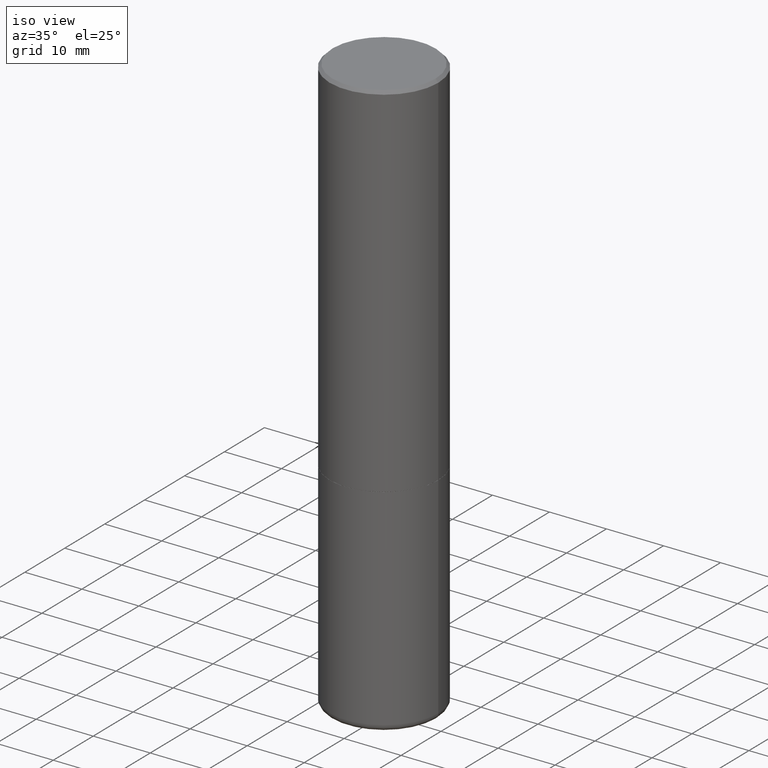
[diagram: clean part render]
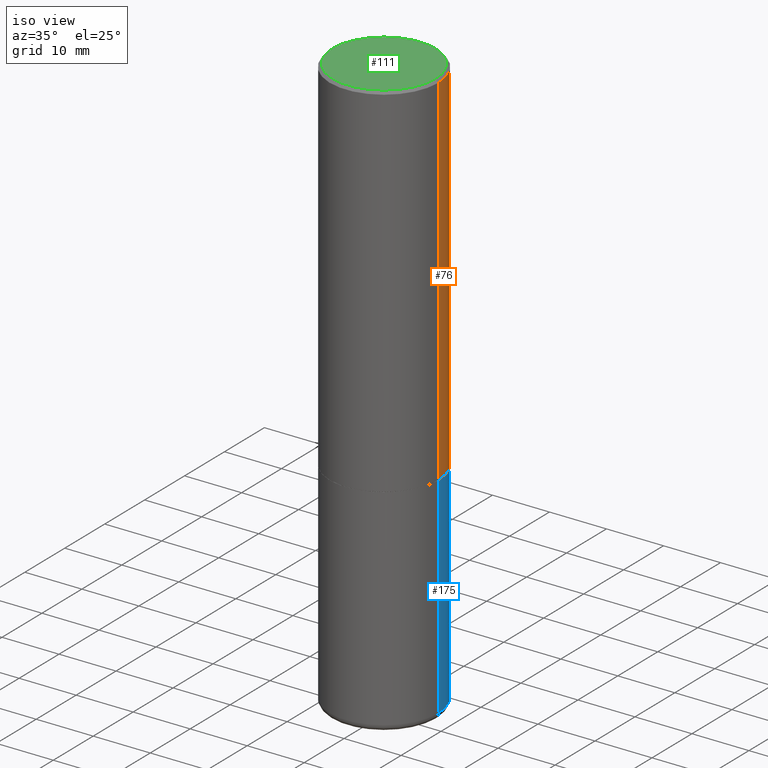
[diagram: same view with three faces highlighted in distinct colors, each labeled with its STEP entity id]
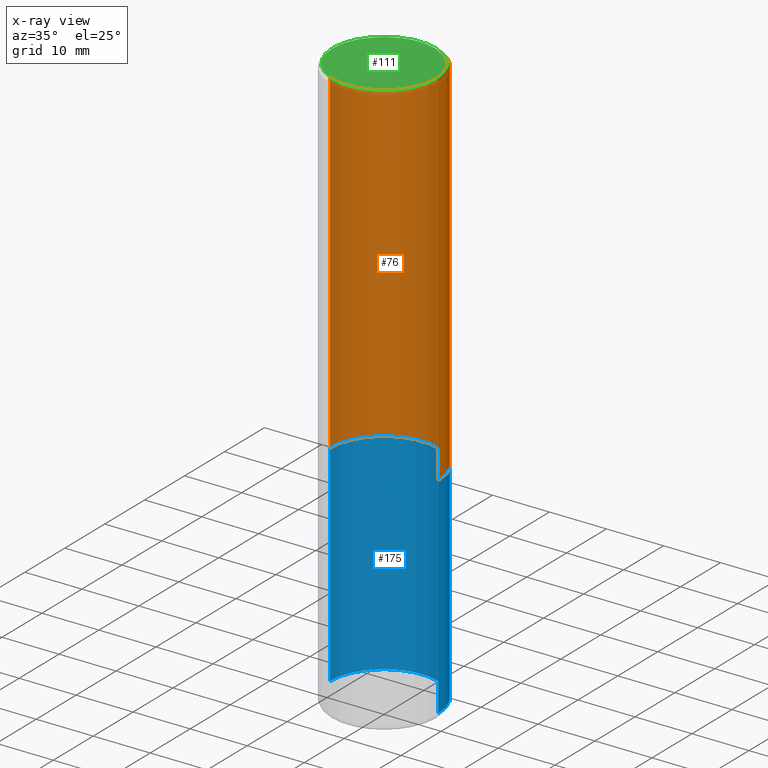
[diagram: x-ray of the same camera — body ghosted, the three highlighted faces saturated]
A machine part, iso view with three faces highlighted in distinct colors.
The next image is the same camera in x-ray (body ghosted, the three faces saturated) — at least one of them is partly hidden behind the body in this view.
Their STEP definitions:

[orange] entity #76 — the highlighted cylindrical surface (partial cylindrical patch) has radius 9.525 mm, axis along (-0, 0, 1).
#16 = VERTEX_POINT ( 'NONE', #174 ) ;
#54 = VECTOR ( 'NONE', #390, 39.37007874015748143 ) ;
#67 = ORIENTED_EDGE ( 'NONE', *, *, #342, .F. ) ;
#69 = CYLINDRICAL_SURFACE ( 'NONE', #152, 0.3749999999999998335 ) ;
#73 = DIRECTION ( 'NONE',  ( -2.445468806185136597E-29, 3.491481338843145583E-15, 1.000000000000000000 ) ) ;
#76 = ADVANCED_FACE ( 'NONE', ( #368 ), #69, .T. ) ;
#97 = AXIS2_PLACEMENT_3D ( 'NONE', #371, #73, #205 ) ;
#113 = CARTESIAN_POINT ( 'NONE',  ( -0.3749999999999999445, -1.732985487172565737E-15, -2.499000000000000998 ) ) ;
#128 = CIRCLE ( 'NONE', #97, 0.3750000000000000555 ) ;
#142 = EDGE_CURVE ( 'NONE', #288, #199, #151, .T. ) ;
#144 = DIRECTION ( 'NONE',  ( -2.445468806185136597E-29, 3.491481338843145583E-15, 1.000000000000000000 ) ) ;
#151 = LINE ( 'NONE', #253, #54 ) ;
#152 = AXIS2_PLACEMENT_3D ( 'NONE', #334, #144, #215 ) ;
#155 = LINE ( 'NONE', #353, #286 ) ;
#166 = EDGE_LOOP ( 'NONE', ( #400, #425, #386, #67 ) ) ;
#171 = DIRECTION ( 'NONE',  ( 1.000000000000000000, -6.982962677686266711E-15, 0.000000000000000000 ) ) ;
#174 = CARTESIAN_POINT ( 'NONE',  ( 0.3749999999999996669, -2.642516375941185268E-15, -0.02000000000000001776 ) ) ;
#188 = DIRECTION ( 'NONE',  ( -2.445468806185136877E-29, 3.491481338843145188E-15, 1.000000000000000000 ) ) ;
#199 = VERTEX_POINT ( 'NONE', #282 ) ;
#205 = DIRECTION ( 'NONE',  ( 1.000000000000000000, -6.982962677686264344E-15, 0.000000000000000000 ) ) ;
#215 = DIRECTION ( 'NONE',  ( 1.000000000000000000, -6.982962677686265922E-15, 4.876176775795935793E-29 ) ) ;
#248 = CARTESIAN_POINT ( 'NONE',  ( 0.3750000000000000555, -1.134382286990137353E-14, -2.499000000000000998 ) ) ;
#251 = EDGE_CURVE ( 'NONE', #357, #288, #128, .T. ) ;
#253 = CARTESIAN_POINT ( 'NONE',  ( -0.3749999999999998335, 2.664535259100374514E-15, -1.844600658845588757E-29 ) ) ;
#282 = CARTESIAN_POINT ( 'NONE',  ( -0.3749999999999996669, 2.548781377355484746E-15, -0.02000000000000001776 ) ) ;
#286 = VECTOR ( 'NONE', #188, 39.37007874015748143 ) ;
#288 = VERTEX_POINT ( 'NONE', #113 ) ;
#334 = CARTESIAN_POINT ( 'NONE',  ( 0.000000000000000000, 0.000000000000000000, 0.000000000000000000 ) ) ;
#338 = DIRECTION ( 'NONE',  ( -2.445468806185136597E-29, 3.491481338843145583E-15, 1.000000000000000000 ) ) ;
#342 = EDGE_CURVE ( 'NONE', #357, #16, #155, .T. ) ;
#352 = CARTESIAN_POINT ( 'NONE',  ( 4.890937612370276662E-31, -6.982962677686296539E-17, -0.02000000000000001776 ) ) ;
#353 = CARTESIAN_POINT ( 'NONE',  ( 0.3749999999999998335, -2.618611004132348439E-15, 1.828566290923475082E-29 ) ) ;
#357 = VERTEX_POINT ( 'NONE', #248 ) ;
#368 = FACE_OUTER_BOUND ( 'NONE', #166, .T. ) ;
#371 = CARTESIAN_POINT ( 'NONE',  ( 6.111226546656659252E-29, -8.725211865769023513E-15, -2.499000000000000998 ) ) ;
#386 = ORIENTED_EDGE ( 'NONE', *, *, #391, .F. ) ;
#390 = DIRECTION ( 'NONE',  ( -2.445468806185136877E-29, 3.491481338843145188E-15, 1.000000000000000000 ) ) ;
#391 = EDGE_CURVE ( 'NONE', #16, #199, #417, .T. ) ;
#395 = AXIS2_PLACEMENT_3D ( 'NONE', #352, #338, #171 ) ;
#400 = ORIENTED_EDGE ( 'NONE', *, *, #251, .T. ) ;
#417 = CIRCLE ( 'NONE', #395, 0.3749999999999996669 ) ;
#425 = ORIENTED_EDGE ( 'NONE', *, *, #142, .T. ) ;

[blue] entity #175 — the highlighted cylindrical surface (partial cylindrical patch) has radius 9.525 mm, axis along (-0, 0, 1).
#11 = CARTESIAN_POINT ( 'NONE',  ( -0.3749999999999997780, -8.604328423477052173E-15, -3.955061670936044216 ) ) ;
#13 = CARTESIAN_POINT ( 'NONE',  ( -0.3750000000000000555, -8.604328423477050596E-15, -2.500000000000000000 ) ) ;
#19 = VERTEX_POINT ( 'NONE', #101 ) ;
#20 = EDGE_CURVE ( 'NONE', #19, #339, #170, .T. ) ;
#41 = CIRCLE ( 'NONE', #252, 0.3750000000000000555 ) ;
#49 = AXIS2_PLACEMENT_3D ( 'NONE', #423, #126, #354 ) ;
#57 = ORIENTED_EDGE ( 'NONE', *, *, #228, .F. ) ;
#61 = FACE_OUTER_BOUND ( 'NONE', #363, .T. ) ;
#65 = CARTESIAN_POINT ( 'NONE',  ( 9.671979942812559398E-29, -1.380902401804698764E-14, -3.955061670936044216 ) ) ;
#70 = VECTOR ( 'NONE', #306, 39.37007874015748143 ) ;
#101 = CARTESIAN_POINT ( 'NONE',  ( 0.3749999999999997780, -1.642763502217933766E-14, -3.955061670936044216 ) ) ;
#103 = VERTEX_POINT ( 'NONE', #11 ) ;
#106 = CARTESIAN_POINT ( 'NONE',  ( 6.113672015462842613E-29, -8.728703347107864943E-15, -2.500000000000000000 ) ) ;
#126 = DIRECTION ( 'NONE',  ( -2.445468806185136597E-29, 3.491481338843145583E-15, 1.000000000000000000 ) ) ;
#143 = DIRECTION ( 'NONE',  ( 1.000000000000000000, -6.982962677686264344E-15, 0.000000000000000000 ) ) ;
#170 = LINE ( 'NONE', #231, #70 ) ;
#175 = ADVANCED_FACE ( 'NONE', ( #61 ), #287, .T. ) ;
#190 = ORIENTED_EDGE ( 'NONE', *, *, #421, .T. ) ;
#216 = AXIS2_PLACEMENT_3D ( 'NONE', #65, #435, #333 ) ;
#220 = ORIENTED_EDGE ( 'NONE', *, *, #320, .T. ) ;
#225 = DIRECTION ( 'NONE',  ( -2.445468806185136877E-29, 3.491481338843145188E-15, 1.000000000000000000 ) ) ;
#228 = EDGE_CURVE ( 'NONE', #339, #366, #41, .T. ) ;
#231 = CARTESIAN_POINT ( 'NONE',  ( 0.3749999999999998890, -2.618611004132349228E-15, 1.828566290923475362E-29 ) ) ;
#252 = AXIS2_PLACEMENT_3D ( 'NONE', #106, #377, #143 ) ;
#287 = CYLINDRICAL_SURFACE ( 'NONE', #49, 0.3749999999999998890 ) ;
#295 = ORIENTED_EDGE ( 'NONE', *, *, #20, .F. ) ;
#300 = CARTESIAN_POINT ( 'NONE',  ( 0.3750000000000000555, -1.134731435124021338E-14, -2.500000000000000000 ) ) ;
#302 = CARTESIAN_POINT ( 'NONE',  ( -0.3749999999999998890, 2.664535259100374908E-15, -1.844600658845589038E-29 ) ) ;
#306 = DIRECTION ( 'NONE',  ( -2.445468806185136877E-29, 3.491481338843145188E-15, 1.000000000000000000 ) ) ;
#320 = EDGE_CURVE ( 'NONE', #19, #103, #321, .T. ) ;
#321 = CIRCLE ( 'NONE', #216, 0.3749999999999997780 ) ;
#333 = DIRECTION ( 'NONE',  ( 1.000000000000000000, -6.982962677686266711E-15, 0.000000000000000000 ) ) ;
#339 = VERTEX_POINT ( 'NONE', #300 ) ;
#354 = DIRECTION ( 'NONE',  ( 1.000000000000000000, -6.982962677686266711E-15, 4.876176775795935793E-29 ) ) ;
#363 = EDGE_LOOP ( 'NONE', ( #220, #190, #57, #295 ) ) ;
#366 = VERTEX_POINT ( 'NONE', #13 ) ;
#372 = LINE ( 'NONE', #302, #419 ) ;
#377 = DIRECTION ( 'NONE',  ( -2.445468806185136597E-29, 3.491481338843145583E-15, 1.000000000000000000 ) ) ;
#419 = VECTOR ( 'NONE', #225, 39.37007874015748143 ) ;
#421 = EDGE_CURVE ( 'NONE', #103, #366, #372, .T. ) ;
#423 = CARTESIAN_POINT ( 'NONE',  ( 0.000000000000000000, 0.000000000000000000, 0.000000000000000000 ) ) ;
#435 = DIRECTION ( 'NONE',  ( -2.445468806185136597E-29, 3.491481338843145583E-15, 1.000000000000000000 ) ) ;

[green] entity #111 — the highlighted planar face has unit normal (0, -0, -1).
#7 = AXIS2_PLACEMENT_3D ( 'NONE', #313, #85, #163 ) ;
#53 = CARTESIAN_POINT ( 'NONE',  ( -0.3549999999999997047, 2.513866563967053491E-15, 4.268512490082953109E-18 ) ) ;
#59 = AXIS2_PLACEMENT_3D ( 'NONE', #172, #399, #383 ) ;
#79 = CARTESIAN_POINT ( 'NONE',  ( 2.478951750578622237E-15, 0.3549999999999997047, -1.237341619044265441E-15 ) ) ;
#85 = DIRECTION ( 'NONE',  ( -2.445468806185136597E-29, 3.491481338843145583E-15, 1.000000000000000000 ) ) ;
#111 = ADVANCED_FACE ( 'NONE', ( #123 ), #149, .F. ) ;
#115 = VERTEX_POINT ( 'NONE', #53 ) ;
#123 = FACE_OUTER_BOUND ( 'NONE', #433, .T. ) ;
#147 = CIRCLE ( 'NONE', #59, 0.3549999999999997047 ) ;
#149 = PLANE ( 'NONE',  #235 ) ;
#161 = VERTEX_POINT ( 'NONE', #382 ) ;
#162 = ORIENTED_EDGE ( 'NONE', *, *, #311, .T. ) ;
#163 = DIRECTION ( 'NONE',  ( 1.000000000000000000, -6.982962677686265922E-15, 4.876231632511992107E-29 ) ) ;
#172 = CARTESIAN_POINT ( 'NONE',  ( -1.043851414335219820E-46, 1.490343170380447200E-32, 4.268512490100411279E-18 ) ) ;
#200 = CIRCLE ( 'NONE', #7, 0.3549999999999997047 ) ;
#235 = AXIS2_PLACEMENT_3D ( 'NONE', #79, #347, #283 ) ;
#257 = ORIENTED_EDGE ( 'NONE', *, *, #312, .T. ) ;
#283 = DIRECTION ( 'NONE',  ( -1.000000000000000000, 6.982962677686265922E-15, -4.876176775795935793E-29 ) ) ;
#311 = EDGE_CURVE ( 'NONE', #161, #115, #147, .T. ) ;
#312 = EDGE_CURVE ( 'NONE', #115, #161, #200, .T. ) ;
#313 = CARTESIAN_POINT ( 'NONE',  ( -1.043851414335219820E-46, 1.490343170380447200E-32, 4.268512490100411279E-18 ) ) ;
#347 = DIRECTION ( 'NONE',  ( 2.438088387897960049E-29, -3.491481338843145188E-15, -1.000000000000000000 ) ) ;
#382 = CARTESIAN_POINT ( 'NONE',  ( 0.3549999999999997047, -2.538996582575038287E-15, 4.268512490117958041E-18 ) ) ;
#383 = DIRECTION ( 'NONE',  ( 1.000000000000000000, -6.982962677686265922E-15, 4.876231632511992107E-29 ) ) ;
#399 = DIRECTION ( 'NONE',  ( -2.445468806185136597E-29, 3.491481338843145583E-15, 1.000000000000000000 ) ) ;
#433 = EDGE_LOOP ( 'NONE', ( #257, #162 ) ) ;